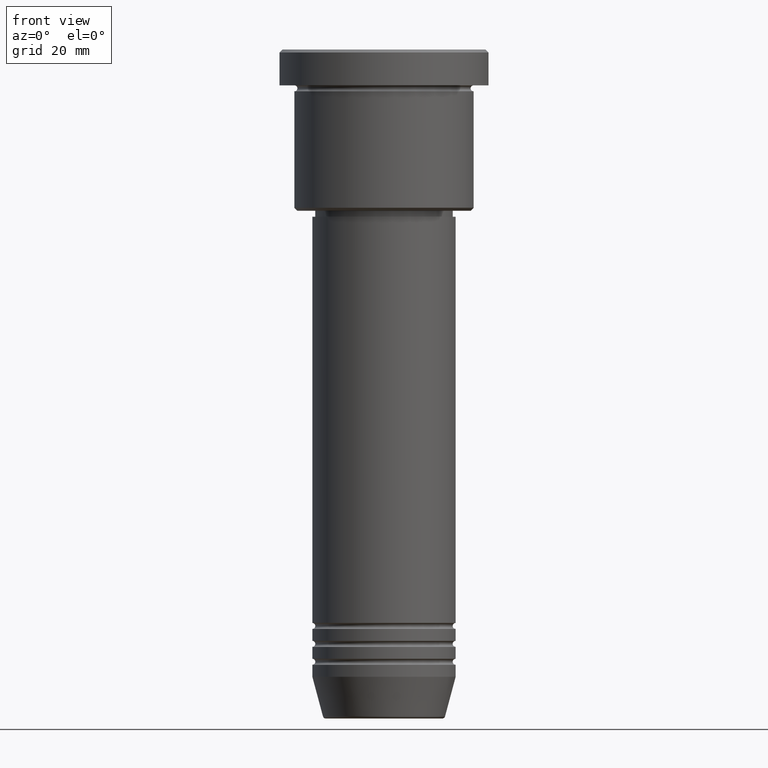
[diagram: clean part render]
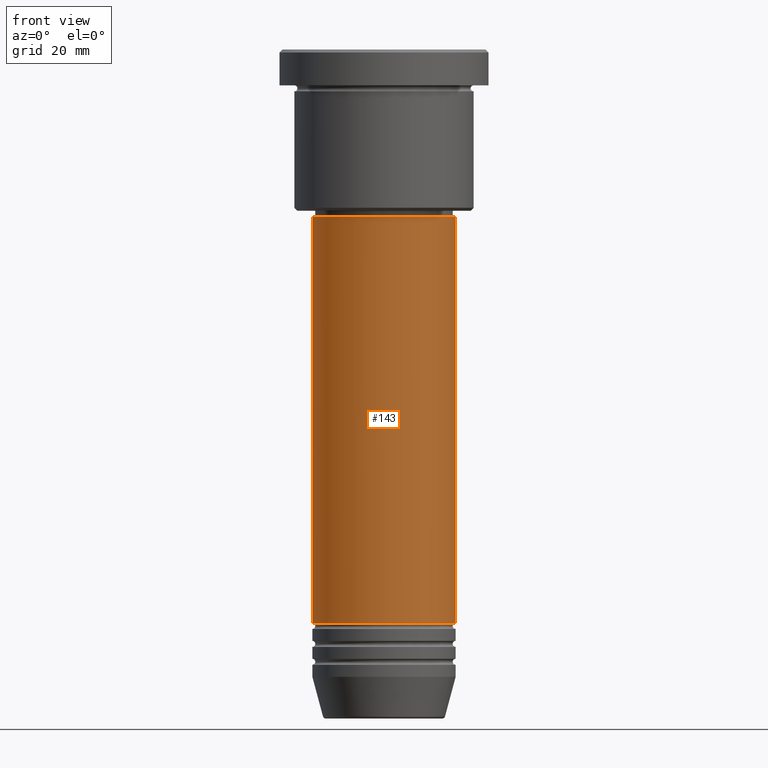
[diagram: same view with one face highlighted and labeled with its STEP entity id]
A machine part, front view. The second image highlights one B-rep face of the part: STEP entity #143.
In plain terms, the highlighted cylindrical surface (partial cylindrical patch) has radius 12 mm, axis along (-0, -0, 1).
Its self-contained STEP definition (entity closure, byte-faithful):
#74 = CARTESIAN_POINT ( 'NONE',  ( -12.00000000000000000, 1.469576158976823947E-15, -95.99999999999997158 ) ) ;
#98 = EDGE_LOOP ( 'NONE', ( #926, #503, #534, #852 ) ) ;
#111 = EDGE_CURVE ( 'NONE', #156, #423, #182, .T. ) ;
#143 = ADVANCED_FACE ( 'NONE', ( #357 ), #1163, .T. ) ;
#156 = VERTEX_POINT ( 'NONE', #74 ) ;
#160 = VECTOR ( 'NONE', #562, 1000.000000000000000 ) ;
#166 = CIRCLE ( 'NONE', #1093, 12.00000000000000000 ) ;
#182 = LINE ( 'NONE', #741, #286 ) ;
#251 = EDGE_CURVE ( 'NONE', #563, #358, #1119, .T. ) ;
#286 = VECTOR ( 'NONE', #645, 1000.000000000000000 ) ;
#335 = DIRECTION ( 'NONE',  ( 1.000000000000000000, 0.000000000000000000, 0.000000000000000000 ) ) ;
#357 = FACE_OUTER_BOUND ( 'NONE', #98, .T. ) ;
#358 = VERTEX_POINT ( 'NONE', #1109 ) ;
#365 = AXIS2_PLACEMENT_3D ( 'NONE', #405, #1135, #1147 ) ;
#405 = CARTESIAN_POINT ( 'NONE',  ( 0.000000000000000000, 0.000000000000000000, -28.00000000000000355 ) ) ;
#423 = VERTEX_POINT ( 'NONE', #776 ) ;
#434 = DIRECTION ( 'NONE',  ( -0.000000000000000000, -0.000000000000000000, 1.000000000000000000 ) ) ;
#503 = ORIENTED_EDGE ( 'NONE', *, *, #520, .T. ) ;
#520 = EDGE_CURVE ( 'NONE', #156, #563, #166, .T. ) ;
#528 = CARTESIAN_POINT ( 'NONE',  ( 0.000000000000000000, 0.000000000000000000, 0.000000000000000000 ) ) ;
#534 = ORIENTED_EDGE ( 'NONE', *, *, #251, .T. ) ;
#562 = DIRECTION ( 'NONE',  ( -0.000000000000000000, -0.000000000000000000, 1.000000000000000000 ) ) ;
#563 = VERTEX_POINT ( 'NONE', #1183 ) ;
#608 = AXIS2_PLACEMENT_3D ( 'NONE', #528, #1094, #335 ) ;
#645 = DIRECTION ( 'NONE',  ( -0.000000000000000000, -0.000000000000000000, 1.000000000000000000 ) ) ;
#728 = DIRECTION ( 'NONE',  ( 1.000000000000000000, 0.000000000000000000, 0.000000000000000000 ) ) ;
#741 = CARTESIAN_POINT ( 'NONE',  ( -12.00000000000000000, 1.469576158976823947E-15, 0.000000000000000000 ) ) ;
#759 = CARTESIAN_POINT ( 'NONE',  ( 12.00000000000000000, 0.000000000000000000, 0.000000000000000000 ) ) ;
#776 = CARTESIAN_POINT ( 'NONE',  ( -12.00000000000000000, 1.469576158976823947E-15, -28.00000000000000355 ) ) ;
#852 = ORIENTED_EDGE ( 'NONE', *, *, #874, .F. ) ;
#874 = EDGE_CURVE ( 'NONE', #423, #358, #1153, .T. ) ;
#909 = CARTESIAN_POINT ( 'NONE',  ( 0.000000000000000000, 0.000000000000000000, -95.99999999999997158 ) ) ;
#926 = ORIENTED_EDGE ( 'NONE', *, *, #111, .F. ) ;
#1093 = AXIS2_PLACEMENT_3D ( 'NONE', #909, #434, #728 ) ;
#1094 = DIRECTION ( 'NONE',  ( -0.000000000000000000, -0.000000000000000000, 1.000000000000000000 ) ) ;
#1109 = CARTESIAN_POINT ( 'NONE',  ( 12.00000000000000000, 0.000000000000000000, -28.00000000000000355 ) ) ;
#1119 = LINE ( 'NONE', #759, #160 ) ;
#1135 = DIRECTION ( 'NONE',  ( -0.000000000000000000, -0.000000000000000000, 1.000000000000000000 ) ) ;
#1147 = DIRECTION ( 'NONE',  ( 1.000000000000000000, 0.000000000000000000, 0.000000000000000000 ) ) ;
#1153 = CIRCLE ( 'NONE', #365, 12.00000000000000000 ) ;
#1163 = CYLINDRICAL_SURFACE ( 'NONE', #608, 12.00000000000000000 ) ;
#1183 = CARTESIAN_POINT ( 'NONE',  ( 12.00000000000000000, 0.000000000000000000, -95.99999999999997158 ) ) ;